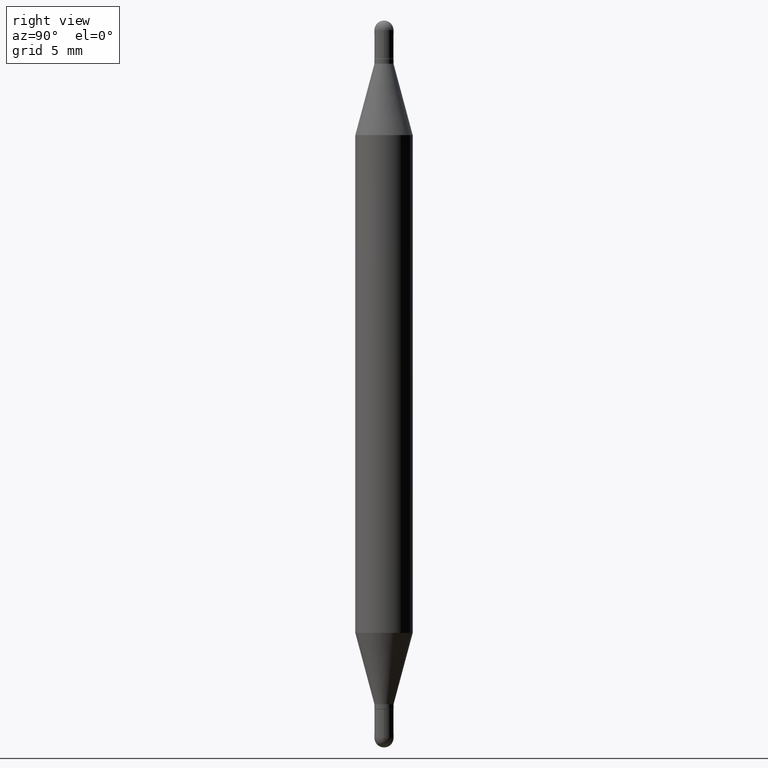
[diagram: clean part render]
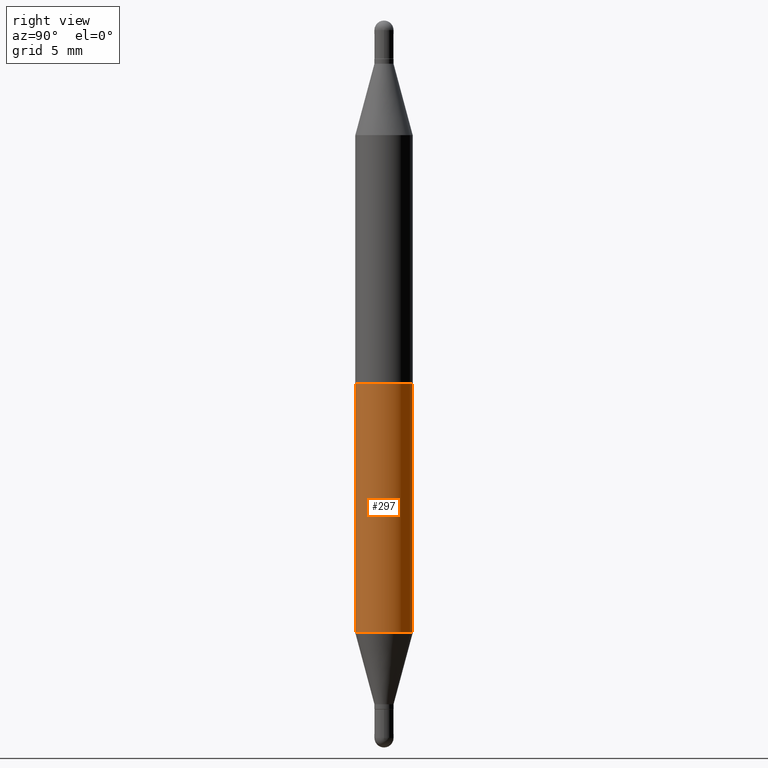
[diagram: same view with one face highlighted and labeled with its STEP entity id]
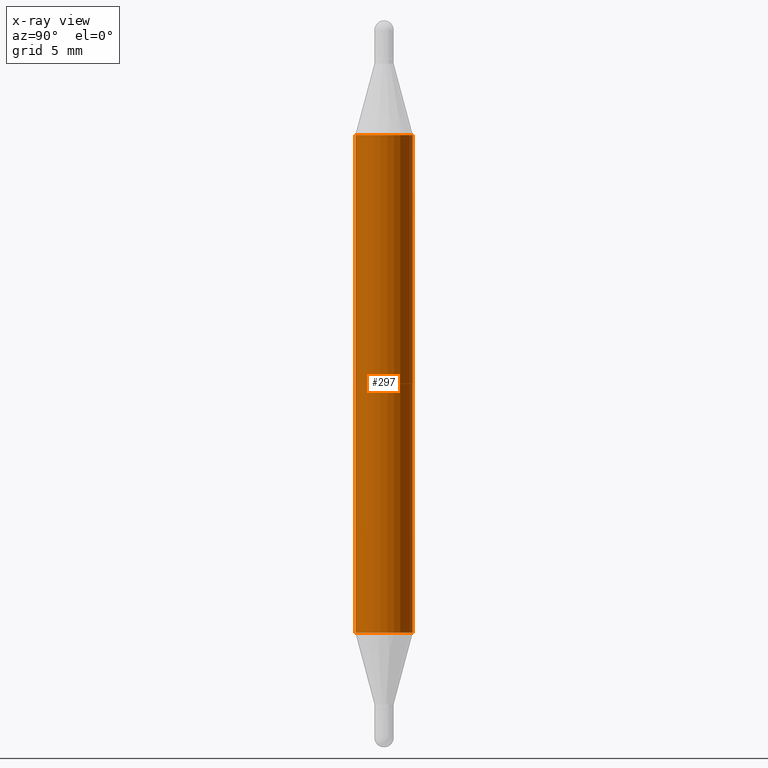
[diagram: x-ray of the same camera — body ghosted, the highlighted face saturated]
A machine part, right view. The second image highlights one B-rep face of the part: STEP entity #297.
The next image is the same camera in x-ray: the body ghosted, the highlighted face saturated — about 0% of this face is hidden behind the body in this view.
In plain terms, the highlighted cylindrical surface (edge-blend (fillet) strip) has radius 1.4999 mm, axis along (-0, -0, -1).
Its self-contained STEP definition (entity closure, byte-faithful):
#17 = VECTOR ( 'NONE', #751, 39.37007874015748143 ) ;
#24 = DIRECTION ( 'NONE',  ( -6.982962677686265922E-15, -1.000000000000000000, 4.626330217890369336E-15 ) ) ;
#41 = VERTEX_POINT ( 'NONE', #969 ) ;
#42 = CIRCLE ( 'NONE', #611, 0.05905000000000000526 ) ;
#50 = EDGE_CURVE ( 'NONE', #54, #916, #518, .T. ) ;
#54 = VERTEX_POINT ( 'NONE', #279 ) ;
#90 = DIRECTION ( 'NONE',  ( -6.982962677686265922E-15, -1.000000000000000000, 4.626330217890367758E-15 ) ) ;
#175 = DIRECTION ( 'NONE',  ( -2.452517539544845457E-29, -3.489708654337919205E-15, -1.000000000000000000 ) ) ;
#176 = EDGE_LOOP ( 'NONE', ( #901, #301, #300, #1095 ) ) ;
#187 = CARTESIAN_POINT ( 'NONE',  ( 3.090770025373766700E-29, -4.387396575570313386E-15, -1.260243800722164131 ) ) ;
#194 = CARTESIAN_POINT ( 'NONE',  ( -4.123439461173430699E-16, -0.05905000000000081711, -0.2358561992778356042 ) ) ;
#197 = DIRECTION ( 'NONE',  ( -2.452517539544845457E-29, -3.489708654337918810E-15, -1.000000000000000000 ) ) ;
#244 = CARTESIAN_POINT ( 'NONE',  ( 0.000000000000000000, -5.214728217544379106E-15, -1.496099999999999985 ) ) ;
#274 = DIRECTION ( 'NONE',  ( 2.452517539544845457E-29, 3.489708654337919205E-15, 1.000000000000000000 ) ) ;
#279 = CARTESIAN_POINT ( 'NONE',  ( -4.123439461173431192E-16, -0.05905000000000439758, -1.260243800722163909 ) ) ;
#282 = LINE ( 'NONE', #619, #1031 ) ;
#297 = ADVANCED_FACE ( 'NONE', ( #668 ), #760, .T. ) ;
#300 = ORIENTED_EDGE ( 'NONE', *, *, #490, .T. ) ;
#301 = ORIENTED_EDGE ( 'NONE', *, *, #1069, .F. ) ;
#342 = CARTESIAN_POINT ( 'NONE',  ( 4.051124067684273079E-16, 0.05904999999999561988, -1.260243800722164353 ) ) ;
#441 = DIRECTION ( 'NONE',  ( -6.982962677686265922E-15, -1.000000000000000000, 3.469747663417777002E-15 ) ) ;
#490 = EDGE_CURVE ( 'NONE', #656, #54, #282, .T. ) ;
#518 = CIRCLE ( 'NONE', #867, 0.05905000000000000526 ) ;
#523 = EDGE_CURVE ( 'NONE', #41, #916, #758, .T. ) ;
#549 = AXIS2_PLACEMENT_3D ( 'NONE', #244, #175, #90 ) ;
#611 = AXIS2_PLACEMENT_3D ( 'NONE', #702, #274, #441 ) ;
#619 = CARTESIAN_POINT ( 'NONE',  ( -4.123439461173741313E-16, -0.05905000000000523025, -1.496099999999999541 ) ) ;
#656 = VERTEX_POINT ( 'NONE', #194 ) ;
#668 = FACE_OUTER_BOUND ( 'NONE', #176, .T. ) ;
#702 = CARTESIAN_POINT ( 'NONE',  ( 3.090770025373766700E-29, -8.168445195885310899E-16, -0.2358561992778358263 ) ) ;
#751 = DIRECTION ( 'NONE',  ( -2.452517539544845457E-29, -3.489708654337918810E-15, -1.000000000000000000 ) ) ;
#758 = LINE ( 'NONE', #1020, #17 ) ;
#760 = CYLINDRICAL_SURFACE ( 'NONE', #549, 0.05905000000000001914 ) ;
#793 = DIRECTION ( 'NONE',  ( -2.452517539544845457E-29, 3.481387151483054632E-15, 1.000000000000000000 ) ) ;
#867 = AXIS2_PLACEMENT_3D ( 'NONE', #187, #793, #24 ) ;
#901 = ORIENTED_EDGE ( 'NONE', *, *, #523, .F. ) ;
#916 = VERTEX_POINT ( 'NONE', #342 ) ;
#969 = CARTESIAN_POINT ( 'NONE',  ( 4.051124067684398803E-16, 0.05904999999999917953, -0.2358561992778360206 ) ) ;
#1020 = CARTESIAN_POINT ( 'NONE',  ( 4.051124067684090161E-16, 0.05904999999999480109, -1.496100000000000207 ) ) ;
#1031 = VECTOR ( 'NONE', #197, 39.37007874015748143 ) ;
#1069 = EDGE_CURVE ( 'NONE', #656, #41, #42, .T. ) ;
#1095 = ORIENTED_EDGE ( 'NONE', *, *, #50, .T. ) ;